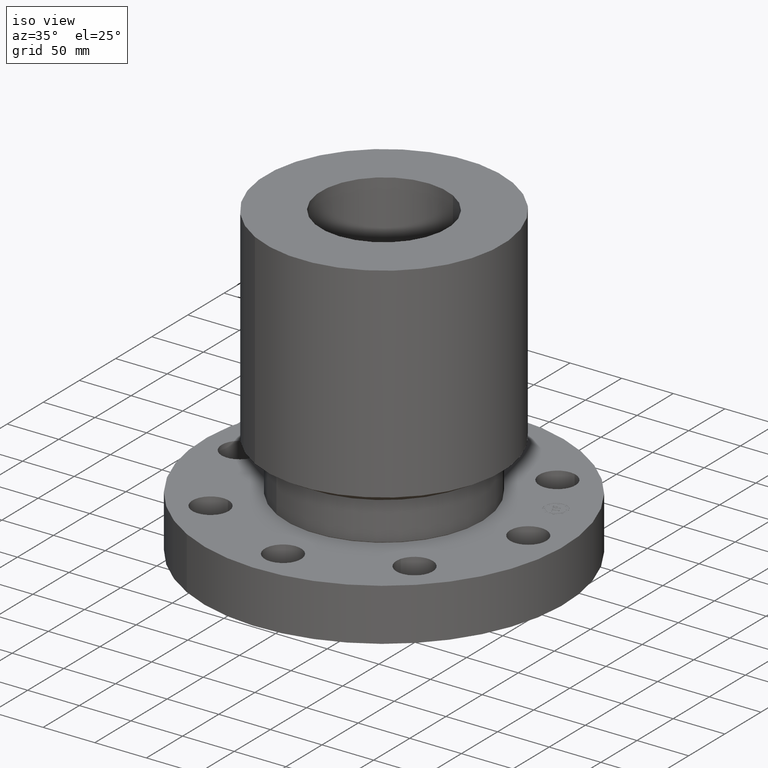
[diagram: clean part render]
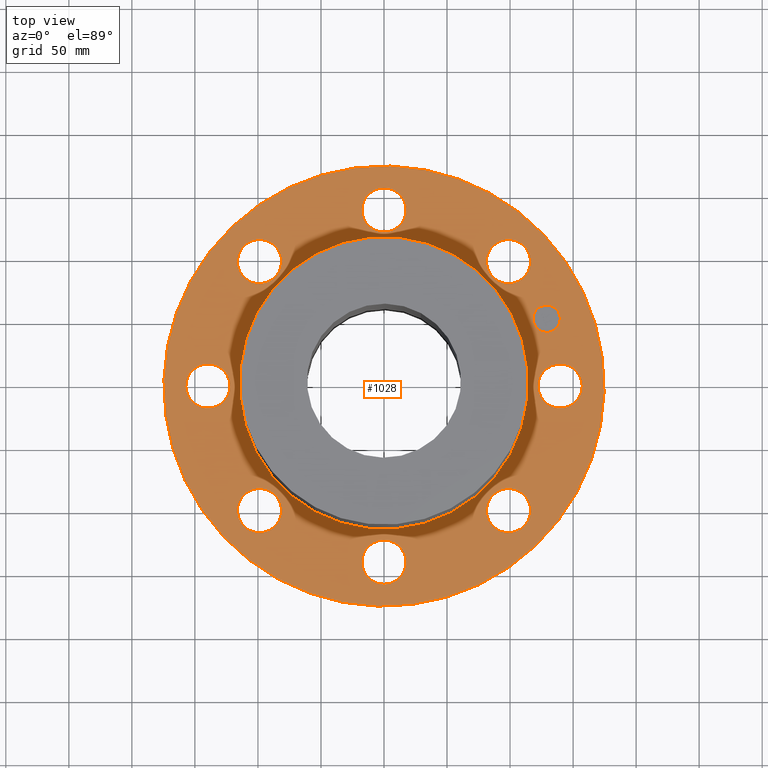
[diagram: tour spotlight — one face highlighted and labeled with its STEP entity id]
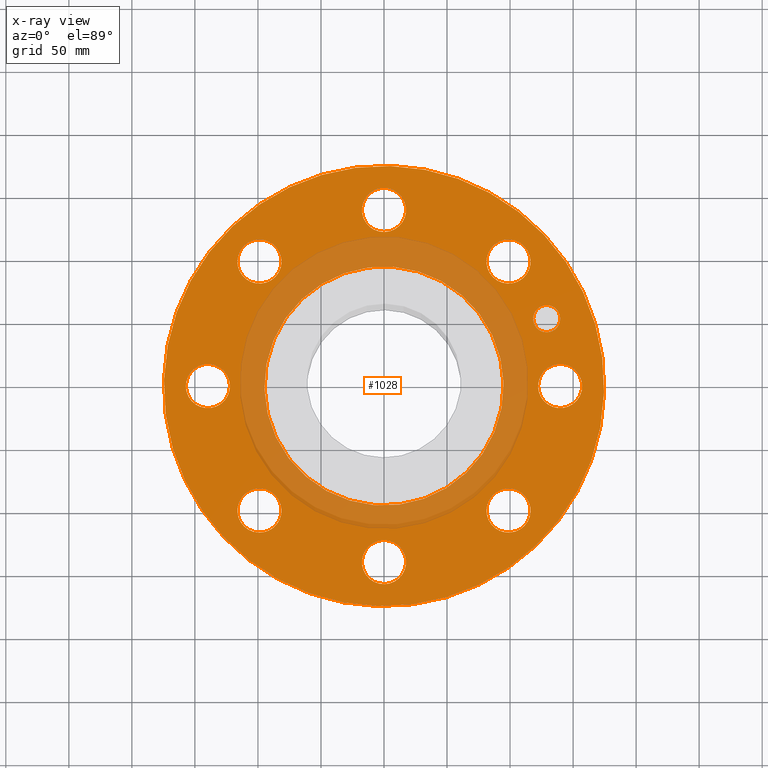
[diagram: x-ray of the same camera — body ghosted, this tour face saturated]
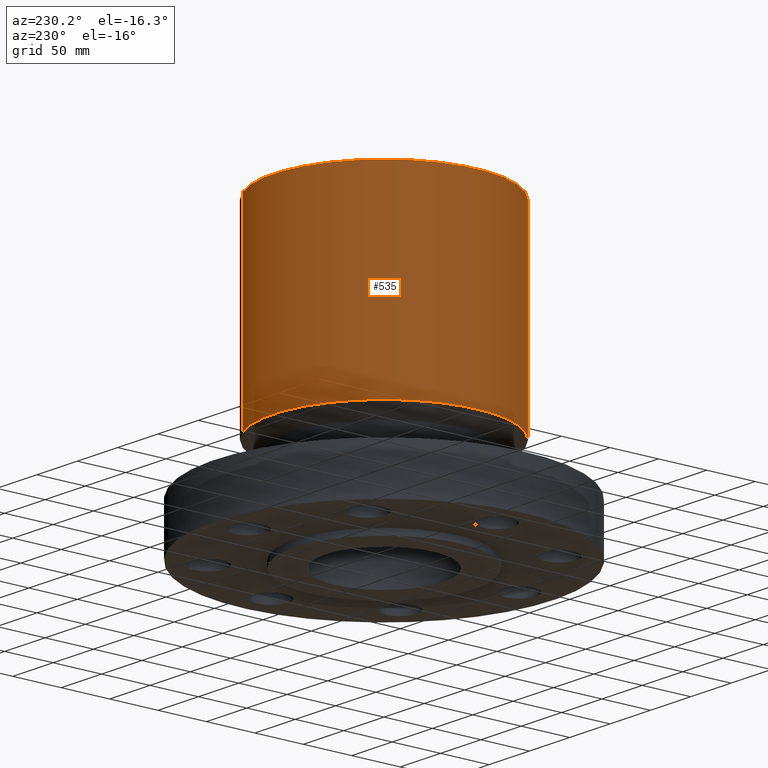
[diagram: tour spotlight — one face highlighted and labeled with its STEP entity id]
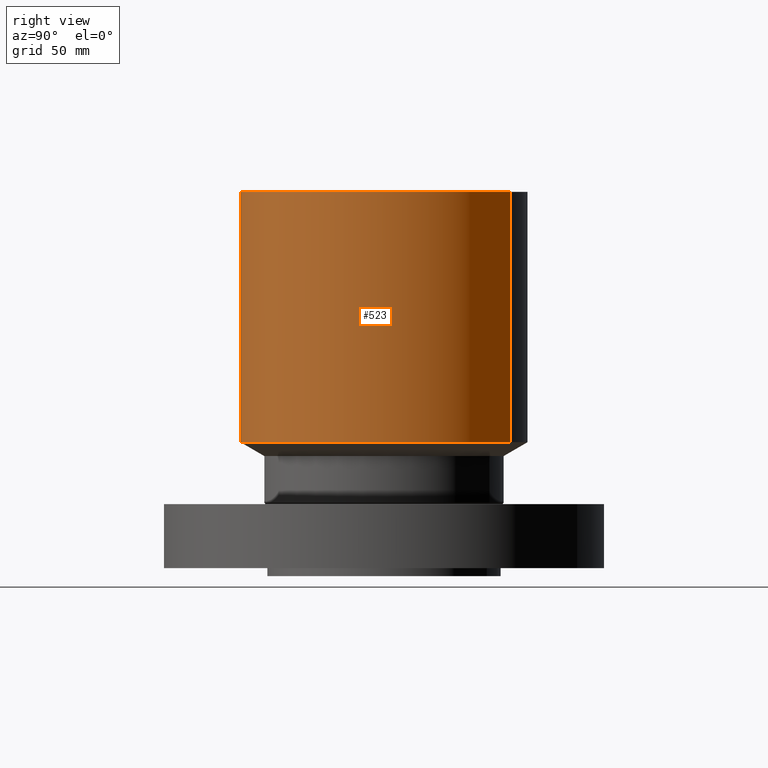
[diagram: tour spotlight — one face highlighted and labeled with its STEP entity id]
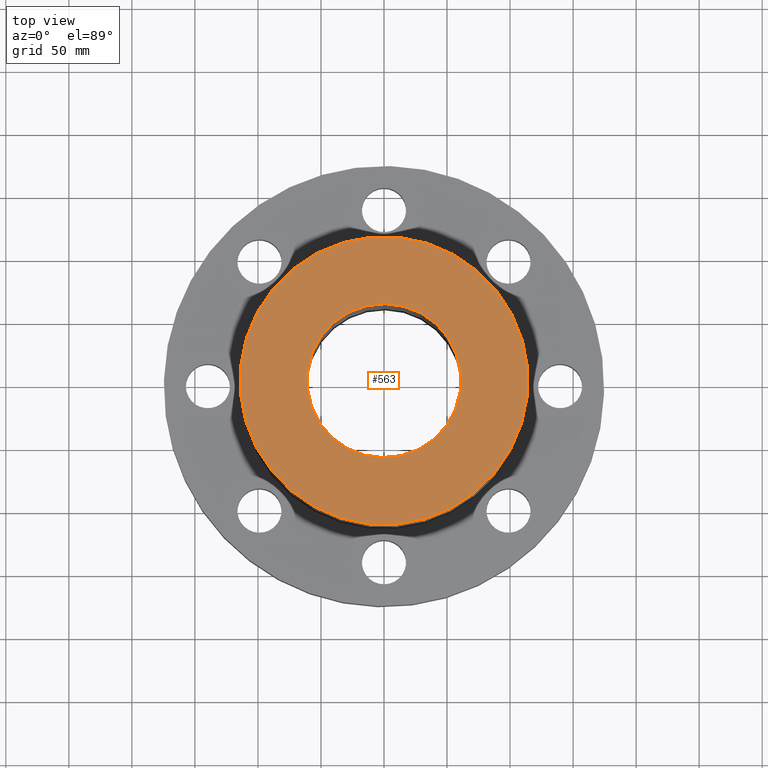
[diagram: tour spotlight — one face highlighted and labeled with its STEP entity id]
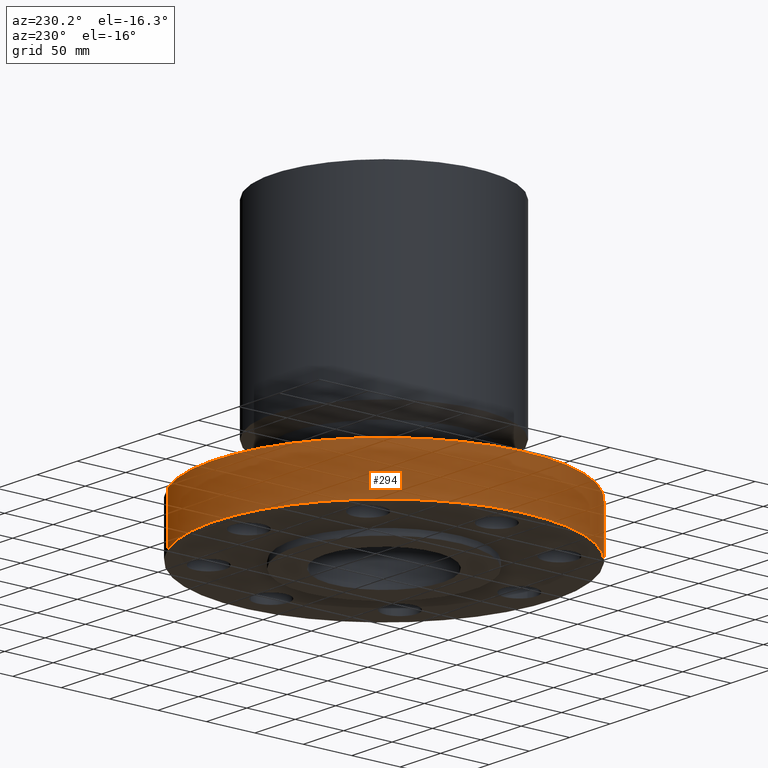
[diagram: tour spotlight — one face highlighted and labeled with its STEP entity id]
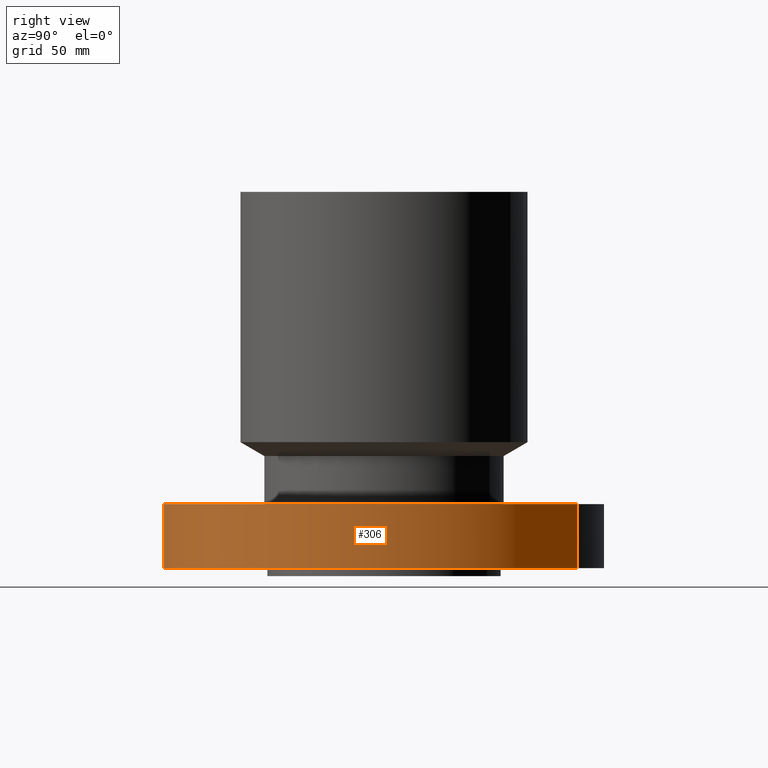
[diagram: tour spotlight — one face highlighted and labeled with its STEP entity id]
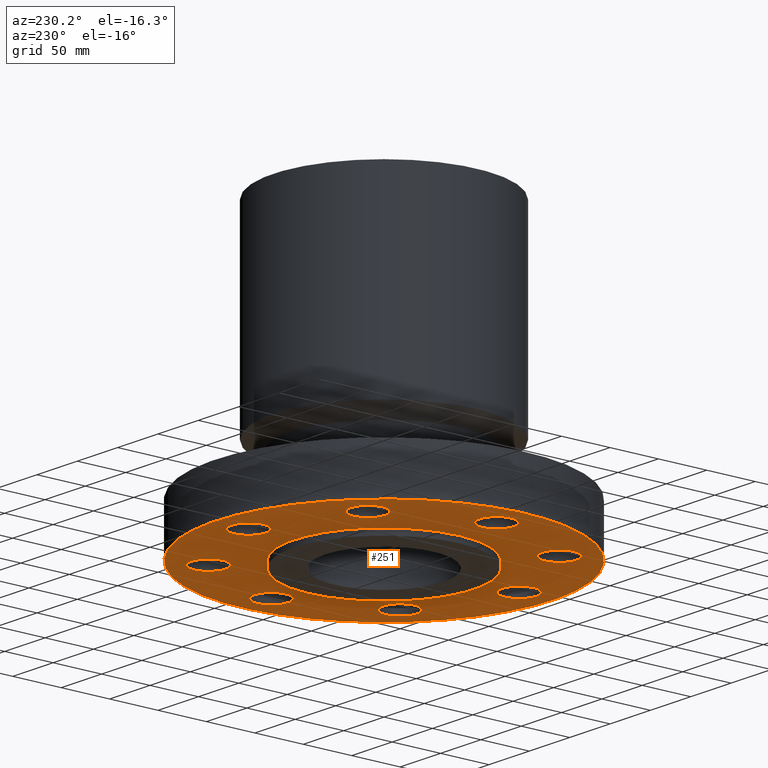
[diagram: tour spotlight — one face highlighted and labeled with its STEP entity id]
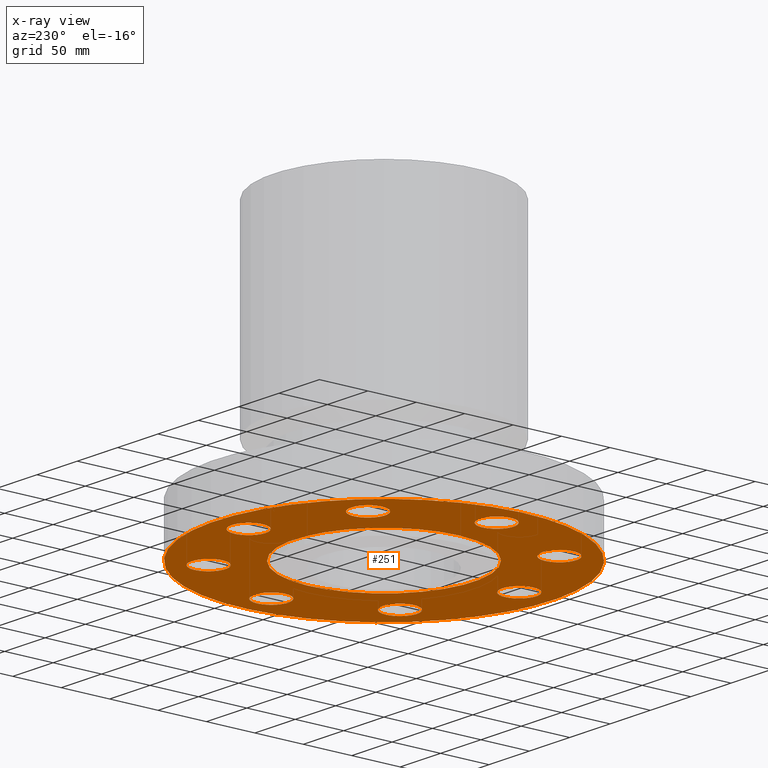
[diagram: x-ray of the same camera — body ghosted, this tour face saturated]
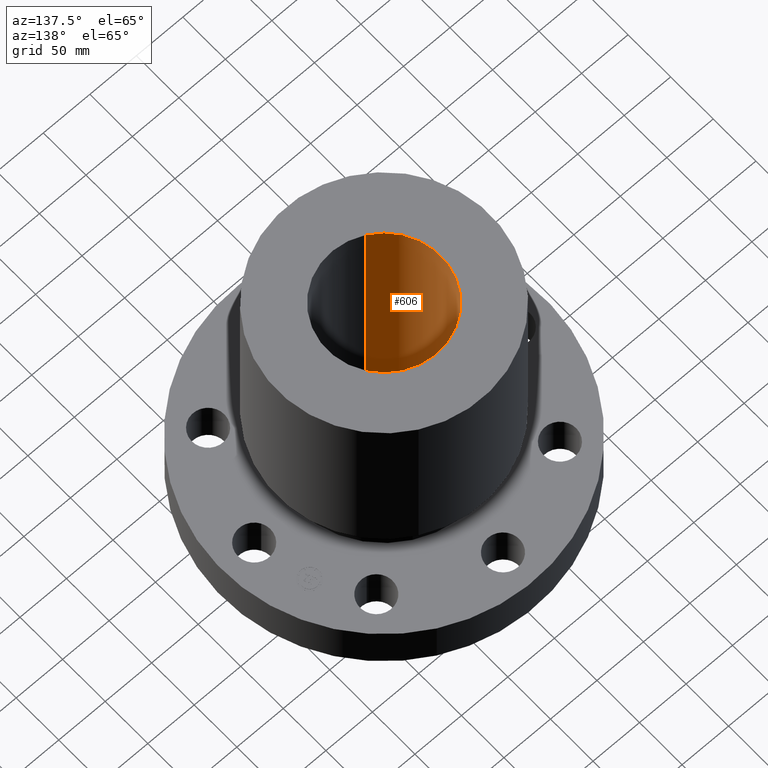
[diagram: tour spotlight — one face highlighted and labeled with its STEP entity id]
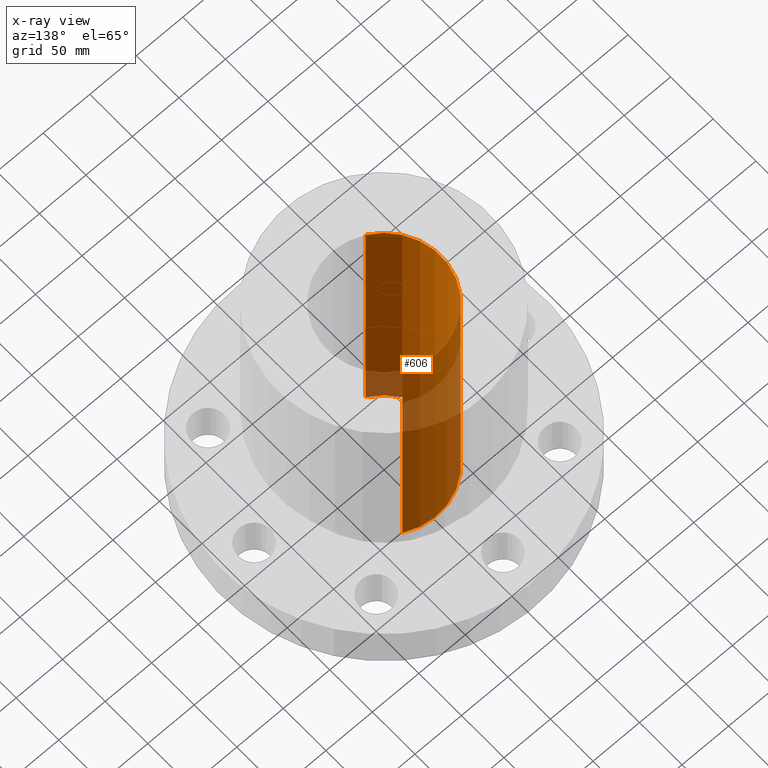
[diagram: x-ray of the same camera — body ghosted, this tour face saturated]
A machine part: a face-by-face anatomy tour. The part has 421 B-rep faces; the first image is the clean iso view, then the 8 largest visible faces are spotlighted one at a time (largest first), each with its STEP entity span.

Face 1 — top view, entity #1028. An x-ray twin of the same camera follows (body ghosted, this face saturated) — the face is partly hidden behind the body. In plain terms, the highlighted planar face has unit normal (0, 0, -1).
Definition (entity closure, byte-faithful):
#51=AXIS2_PLACEMENT_3D('Circle Axis2P3D',#49,#50,$) ;
#254=AXIS2_PLACEMENT_3D('Circle Axis2P3D',#252,#253,$) ;
#278=AXIS2_PLACEMENT_3D('Circle Axis2P3D',#276,#277,$) ;
#297=AXIS2_PLACEMENT_3D('Circle Axis2P3D',#295,#296,$) ;
#314=AXIS2_PLACEMENT_3D('Circle Axis2P3D',#312,#313,$) ;
#349=AXIS2_PLACEMENT_3D('Circle Axis2P3D',#347,#348,$) ;
#678=AXIS2_PLACEMENT_3D('Circle Axis2P3D',#676,#677,$) ;
#697=AXIS2_PLACEMENT_3D('Circle Axis2P3D',#695,#696,$) ;
#721=AXIS2_PLACEMENT_3D('Circle Axis2P3D',#719,#720,$) ;
#740=AXIS2_PLACEMENT_3D('Circle Axis2P3D',#738,#739,$) ;
#764=AXIS2_PLACEMENT_3D('Circle Axis2P3D',#762,#763,$) ;
#783=AXIS2_PLACEMENT_3D('Circle Axis2P3D',#781,#782,$) ;
#807=AXIS2_PLACEMENT_3D('Circle Axis2P3D',#805,#806,$) ;
#826=AXIS2_PLACEMENT_3D('Circle Axis2P3D',#824,#825,$) ;
#850=AXIS2_PLACEMENT_3D('Circle Axis2P3D',#848,#849,$) ;
#869=AXIS2_PLACEMENT_3D('Circle Axis2P3D',#867,#868,$) ;
#893=AXIS2_PLACEMENT_3D('Circle Axis2P3D',#891,#892,$) ;
#912=AXIS2_PLACEMENT_3D('Circle Axis2P3D',#910,#911,$) ;
#936=AXIS2_PLACEMENT_3D('Circle Axis2P3D',#934,#935,$) ;
#955=AXIS2_PLACEMENT_3D('Circle Axis2P3D',#953,#954,$) ;
#968=AXIS2_PLACEMENT_3D('Plane Axis2P3D',#965,#966,#967) ;
#1012=AXIS2_PLACEMENT_3D('Circle Axis2P3D',#1010,#1011,$) ;
#1021=AXIS2_PLACEMENT_3D('Circle Axis2P3D',#1019,#1020,$) ;
#44=CARTESIAN_POINT('Vertex',(4.89446803232,-0.330803621638,2.00000000001)) ;
#49=CARTESIAN_POINT('Axis2P3D Location',(5.50000000002,0.,2.00000000001)) ;
#53=CARTESIAN_POINT('Vertex',(6.10553196773,0.330803621638,2.00000000001)) ;
#252=CARTESIAN_POINT('Axis2P3D Location',(5.50000000002,0.,2.00000000001)) ;
#273=CARTESIAN_POINT('Vertex',(-3.29605057792,-6.03338011302,2.00000000001)) ;
#276=CARTESIAN_POINT('Axis2P3D Location',(0.,0.,2.00000000001)) ;
#280=CARTESIAN_POINT('Vertex',(3.29605057792,6.03338011302,2.00000000001)) ;
#295=CARTESIAN_POINT('Axis2P3D Location',(0.,0.,2.00000000001)) ;
#312=CARTESIAN_POINT('Axis2P3D Location',(0.,0.,2.00000000001)) ;
#316=CARTESIAN_POINT('Vertex',(1.79065438669,3.27777086867,2.00000000001)) ;
#318=CARTESIAN_POINT('Vertex',(-1.79065438669,-3.27777086867,2.00000000001)) ;
#347=CARTESIAN_POINT('Axis2P3D Location',(0.,0.,2.00000000001)) ;
#673=CARTESIAN_POINT('Vertex',(3.22699805185,-3.69482502005,2.00000000001)) ;
#676=CARTESIAN_POINT('Axis2P3D Location',(3.88908729654,-3.88908729654,2.00000000001)) ;
#680=CARTESIAN_POINT('Vertex',(4.55117654123,-4.08334957303,2.00000000001)) ;
#695=CARTESIAN_POINT('Axis2P3D Location',(3.88908729654,-3.88908729654,2.00000000001)) ;
#716=CARTESIAN_POINT('Vertex',(-0.330803621638,-4.89446803232,2.00000000001)) ;
#719=CARTESIAN_POINT('Axis2P3D Location',(-7.82187068438E-016,-5.50000000002,2.00000000001)) ;
#723=CARTESIAN_POINT('Vertex',(0.330803621638,-6.10553196773,2.00000000001)) ;
#738=CARTESIAN_POINT('Axis2P3D Location',(-7.82187068438E-016,-5.50000000002,2.00000000001)) ;
#759=CARTESIAN_POINT('Vertex',(-3.69482502005,-3.22699805185,2.00000000001)) ;
#762=CARTESIAN_POINT('Axis2P3D Location',(-3.88908729654,-3.88908729654,2.00000000001)) ;
#766=CARTESIAN_POINT('Vertex',(-4.08334957303,-4.55117654123,2.00000000001)) ;
#781=CARTESIAN_POINT('Axis2P3D Location',(-3.88908729654,-3.88908729654,2.00000000001)) ;
#802=CARTESIAN_POINT('Vertex',(-4.89446803232,0.330803621638,2.00000000001)) ;
#805=CARTESIAN_POINT('Axis2P3D Location',(-5.50000000002,-6.73555739534E-016,2.00000000001)) ;
#809=CARTESIAN_POINT('Vertex',(-6.10553196773,-0.330803621638,2.00000000001)) ;
#824=CARTESIAN_POINT('Axis2P3D Location',(-5.50000000002,-6.73555739534E-016,2.00000000001)) ;
#845=CARTESIAN_POINT('Vertex',(-3.22699805185,3.69482502005,2.00000000001)) ;
#848=CARTESIAN_POINT('Axis2P3D Location',(-3.88908729654,3.88908729654,2.00000000001)) ;
#852=CARTESIAN_POINT('Vertex',(-4.55117654123,4.08334957303,2.00000000001)) ;
#867=CARTESIAN_POINT('Axis2P3D Location',(-3.88908729654,3.88908729654,2.00000000001)) ;
#888=CARTESIAN_POINT('Vertex',(0.330803621638,4.89446803232,2.00000000001)) ;
#891=CARTESIAN_POINT('Axis2P3D Location',(-1.0103336093E-015,5.50000000002,2.00000000001)) ;
#895=CARTESIAN_POINT('Vertex',(-0.330803621638,6.10553196773,2.00000000001)) ;
#910=CARTESIAN_POINT('Axis2P3D Location',(-1.0103336093E-015,5.50000000002,2.00000000001)) ;
#931=CARTESIAN_POINT('Vertex',(3.69482502005,3.22699805185,2.00000000001)) ;
#934=CARTESIAN_POINT('Axis2P3D Location',(3.88908729654,3.88908729654,2.00000000001)) ;
#938=CARTESIAN_POINT('Vertex',(4.08334957303,4.55117654123,2.00000000001)) ;
#953=CARTESIAN_POINT('Axis2P3D Location',(3.88908729654,3.88908729654,2.00000000001)) ;
#965=CARTESIAN_POINT('Axis2P3D Location',(0.,6.87500000003,2.00000000001)) ;
#1010=CARTESIAN_POINT('Axis2P3D Location',(5.08133742883,2.10475887802,2.00000000001)) ;
#1014=CARTESIAN_POINT('Vertex',(5.24397788596,1.71211008062,2.00000000001)) ;
#1016=CARTESIAN_POINT('Vertex',(4.9186969717,2.49740767541,2.00000000001)) ;
#1019=CARTESIAN_POINT('Axis2P3D Location',(5.08133742883,2.10475887802,2.00000000001)) ;
#50=DIRECTION('Axis2P3D Direction',(0.,-0.,0.0393700787402)) ;
#253=DIRECTION('Axis2P3D Direction',(0.,-0.,0.0393700787402)) ;
#277=DIRECTION('Axis2P3D Direction',(0.,0.,-0.0393700787402)) ;
#296=DIRECTION('Axis2P3D Direction',(0.,0.,-0.0393700787402)) ;
#313=DIRECTION('Axis2P3D Direction',(0.,0.,-0.0393700787402)) ;
#348=DIRECTION('Axis2P3D Direction',(0.,0.,-0.0393700787402)) ;
#677=DIRECTION('Axis2P3D Direction',(-0.,0.,0.0393700787402)) ;
#696=DIRECTION('Axis2P3D Direction',(-0.,0.,0.0393700787402)) ;
#720=DIRECTION('Axis2P3D Direction',(-0.,0.,0.0393700787402)) ;
#739=DIRECTION('Axis2P3D Direction',(-0.,0.,0.0393700787402)) ;
#763=DIRECTION('Axis2P3D Direction',(0.,0.,0.0393700787402)) ;
#782=DIRECTION('Axis2P3D Direction',(0.,0.,0.0393700787402)) ;
#806=DIRECTION('Axis2P3D Direction',(0.,0.,0.0393700787402)) ;
#825=DIRECTION('Axis2P3D Direction',(0.,0.,0.0393700787402)) ;
#849=DIRECTION('Axis2P3D Direction',(0.,0.,0.0393700787402)) ;
#868=DIRECTION('Axis2P3D Direction',(0.,0.,0.0393700787402)) ;
#892=DIRECTION('Axis2P3D Direction',(0.,0.,0.0393700787402)) ;
#911=DIRECTION('Axis2P3D Direction',(0.,0.,0.0393700787402)) ;
#935=DIRECTION('Axis2P3D Direction',(0.,-0.,0.0393700787402)) ;
#954=DIRECTION('Axis2P3D Direction',(0.,-0.,0.0393700787402)) ;
#966=DIRECTION('Axis2P3D Direction',(0.,0.,-0.0393700787402)) ;
#967=DIRECTION('Axis2P3D XDirection',(0.0393700787402,0.,0.)) ;
#1011=DIRECTION('Axis2P3D Direction',(0.,0.,-0.0393700787402)) ;
#1020=DIRECTION('Axis2P3D Direction',(0.,0.,-0.0393700787402)) ;
#971=ORIENTED_EDGE('',*,*,#299,.F.) ;
#972=ORIENTED_EDGE('',*,*,#282,.F.) ;
#975=ORIENTED_EDGE('',*,*,#55,.T.) ;
#976=ORIENTED_EDGE('',*,*,#256,.T.) ;
#979=ORIENTED_EDGE('',*,*,#351,.T.) ;
#980=ORIENTED_EDGE('',*,*,#320,.T.) ;
#983=ORIENTED_EDGE('',*,*,#699,.T.) ;
#984=ORIENTED_EDGE('',*,*,#682,.T.) ;
#987=ORIENTED_EDGE('',*,*,#742,.T.) ;
#988=ORIENTED_EDGE('',*,*,#725,.T.) ;
#991=ORIENTED_EDGE('',*,*,#785,.T.) ;
#992=ORIENTED_EDGE('',*,*,#768,.T.) ;
#995=ORIENTED_EDGE('',*,*,#828,.T.) ;
#996=ORIENTED_EDGE('',*,*,#811,.T.) ;
#999=ORIENTED_EDGE('',*,*,#871,.T.) ;
#1000=ORIENTED_EDGE('',*,*,#854,.T.) ;
#1003=ORIENTED_EDGE('',*,*,#914,.T.) ;
#1004=ORIENTED_EDGE('',*,*,#897,.T.) ;
#1007=ORIENTED_EDGE('',*,*,#957,.T.) ;
#1008=ORIENTED_EDGE('',*,*,#940,.T.) ;
#1025=ORIENTED_EDGE('',*,*,#1018,.F.) ;
#1026=ORIENTED_EDGE('',*,*,#1023,.F.) ;
#977=FACE_BOUND('',#974,.T.) ;
#981=FACE_BOUND('',#978,.T.) ;
#985=FACE_BOUND('',#982,.T.) ;
#989=FACE_BOUND('',#986,.T.) ;
#993=FACE_BOUND('',#990,.T.) ;
#997=FACE_BOUND('',#994,.T.) ;
#1001=FACE_BOUND('',#998,.T.) ;
#1005=FACE_BOUND('',#1002,.T.) ;
#1009=FACE_BOUND('',#1006,.T.) ;
#1027=FACE_BOUND('',#1024,.T.) ;
#1028=ADVANCED_FACE('PartBody',(#973,#977,#981,#985,#989,#993,#997,#1001,#1005,#1009,#1027),#969,.F.) ;
#52=CIRCLE('generated circle',#51,0.690000000003) ;
#255=CIRCLE('generated circle',#254,0.690000000003) ;
#279=CIRCLE('generated circle',#278,6.87500000003) ;
#298=CIRCLE('generated circle',#297,6.87500000003) ;
#315=CIRCLE('generated circle',#314,3.73500000001) ;
#350=CIRCLE('generated circle',#349,3.73500000001) ;
#679=CIRCLE('generated circle',#678,0.690000000003) ;
#698=CIRCLE('generated circle',#697,0.690000000003) ;
#722=CIRCLE('generated circle',#721,0.690000000003) ;
#741=CIRCLE('generated circle',#740,0.690000000003) ;
#765=CIRCLE('generated circle',#764,0.690000000003) ;
#784=CIRCLE('generated circle',#783,0.690000000003) ;
#808=CIRCLE('generated circle',#807,0.690000000003) ;
#827=CIRCLE('generated circle',#826,0.690000000003) ;
#851=CIRCLE('generated circle',#850,0.690000000003) ;
#870=CIRCLE('generated circle',#869,0.690000000003) ;
#894=CIRCLE('generated circle',#893,0.690000000003) ;
#913=CIRCLE('generated circle',#912,0.690000000003) ;
#937=CIRCLE('generated circle',#936,0.690000000003) ;
#956=CIRCLE('generated circle',#955,0.690000000003) ;
#1013=CIRCLE('generated circle',#1012,0.424999995752) ;
#1022=CIRCLE('generated circle',#1021,0.424999995752) ;
#55=EDGE_CURVE('',#54,#45,#52,.F.) ;
#256=EDGE_CURVE('',#45,#54,#255,.F.) ;
#282=EDGE_CURVE('',#274,#281,#279,.T.) ;
#299=EDGE_CURVE('',#281,#274,#298,.T.) ;
#320=EDGE_CURVE('',#317,#319,#315,.T.) ;
#351=EDGE_CURVE('',#319,#317,#350,.T.) ;
#682=EDGE_CURVE('',#681,#674,#679,.F.) ;
#699=EDGE_CURVE('',#674,#681,#698,.F.) ;
#725=EDGE_CURVE('',#724,#717,#722,.F.) ;
#742=EDGE_CURVE('',#717,#724,#741,.F.) ;
#768=EDGE_CURVE('',#767,#760,#765,.F.) ;
#785=EDGE_CURVE('',#760,#767,#784,.F.) ;
#811=EDGE_CURVE('',#810,#803,#808,.F.) ;
#828=EDGE_CURVE('',#803,#810,#827,.F.) ;
#854=EDGE_CURVE('',#853,#846,#851,.F.) ;
#871=EDGE_CURVE('',#846,#853,#870,.F.) ;
#897=EDGE_CURVE('',#896,#889,#894,.F.) ;
#914=EDGE_CURVE('',#889,#896,#913,.F.) ;
#940=EDGE_CURVE('',#939,#932,#937,.F.) ;
#957=EDGE_CURVE('',#932,#939,#956,.F.) ;
#1018=EDGE_CURVE('',#1015,#1017,#1013,.F.) ;
#1023=EDGE_CURVE('',#1017,#1015,#1022,.F.) ;
#970=EDGE_LOOP('',(#971,#972)) ;
#974=EDGE_LOOP('',(#975,#976)) ;
#978=EDGE_LOOP('',(#979,#980)) ;
#982=EDGE_LOOP('',(#983,#984)) ;
#986=EDGE_LOOP('',(#987,#988)) ;
#990=EDGE_LOOP('',(#991,#992)) ;
#994=EDGE_LOOP('',(#995,#996)) ;
#998=EDGE_LOOP('',(#999,#1000)) ;
#1002=EDGE_LOOP('',(#1003,#1004)) ;
#1006=EDGE_LOOP('',(#1007,#1008)) ;
#1024=EDGE_LOOP('',(#1025,#1026)) ;
#973=FACE_OUTER_BOUND('',#970,.T.) ;
#969=PLANE('',#968) ;
#45=VERTEX_POINT('',#44) ;
#54=VERTEX_POINT('',#53) ;
#274=VERTEX_POINT('',#273) ;
#281=VERTEX_POINT('',#280) ;
#317=VERTEX_POINT('',#316) ;
#319=VERTEX_POINT('',#318) ;
#674=VERTEX_POINT('',#673) ;
#681=VERTEX_POINT('',#680) ;
#717=VERTEX_POINT('',#716) ;
#724=VERTEX_POINT('',#723) ;
#760=VERTEX_POINT('',#759) ;
#767=VERTEX_POINT('',#766) ;
#803=VERTEX_POINT('',#802) ;
#810=VERTEX_POINT('',#809) ;
#846=VERTEX_POINT('',#845) ;
#853=VERTEX_POINT('',#852) ;
#889=VERTEX_POINT('',#888) ;
#896=VERTEX_POINT('',#895) ;
#932=VERTEX_POINT('',#931) ;
#939=VERTEX_POINT('',#938) ;
#1015=VERTEX_POINT('',#1014) ;
#1017=VERTEX_POINT('',#1016) ;

Face 2 — auxiliary view, entity #535. In plain terms, the highlighted cylindrical surface (partial cylindrical patch) has radius 114.3 mm, axis along (0, 0, -1).
Definition (entity closure, byte-faithful):
#483=AXIS2_PLACEMENT_3D('Circle Axis2P3D',#481,#482,$) ;
#496=AXIS2_PLACEMENT_3D('Cylinder Axis2P3D',#493,#494,#495) ;
#526=AXIS2_PLACEMENT_3D('Circle Axis2P3D',#524,#525,$) ;
#459=CARTESIAN_POINT('Vertex',(2.15741492373,3.94912152852,3.93301270191)) ;
#466=CARTESIAN_POINT('Vertex',(-2.15741492373,-3.94912152852,3.93301270191)) ;
#481=CARTESIAN_POINT('Axis2P3D Location',(0.,0.,3.93301270191)) ;
#493=CARTESIAN_POINT('Axis2P3D Location',(0.,0.,5.75000000002)) ;
#498=CARTESIAN_POINT('Line Origine',(2.15741492373,3.94912152852,7.84150635098)) ;
#502=CARTESIAN_POINT('Vertex',(2.15741492373,3.94912152852,11.75)) ;
#509=CARTESIAN_POINT('Vertex',(-2.15741492373,-3.94912152852,11.75)) ;
#512=CARTESIAN_POINT('Line Origine',(-2.15741492373,-3.94912152852,7.84150635098)) ;
#524=CARTESIAN_POINT('Axis2P3D Location',(0.,0.,11.75)) ;
#482=DIRECTION('Axis2P3D Direction',(-0.,0.,0.0393700787402)) ;
#494=DIRECTION('Axis2P3D Direction',(0.,0.,-0.0393700787402)) ;
#495=DIRECTION('Axis2P3D XDirection',(-0.0188750212049,-0.0345504945626,0.)) ;
#499=DIRECTION('Vector Direction',(0.,0.,-0.0393700787402)) ;
#513=DIRECTION('Vector Direction',(0.,0.,-0.0393700787402)) ;
#525=DIRECTION('Axis2P3D Direction',(0.,0.,-0.0393700787402)) ;
#500=VECTOR('Line Direction',#499,0.0393700787402) ;
#514=VECTOR('Line Direction',#513,0.0393700787402) ;
#530=ORIENTED_EDGE('',*,*,#485,.F.) ;
#531=ORIENTED_EDGE('',*,*,#516,.T.) ;
#532=ORIENTED_EDGE('',*,*,#528,.T.) ;
#533=ORIENTED_EDGE('',*,*,#504,.F.) ;
#535=ADVANCED_FACE('PartBody',(#534),#497,.T.) ;
#484=CIRCLE('generated circle',#483,4.50000000002) ;
#527=CIRCLE('generated circle',#526,4.50000000002) ;
#497=CYLINDRICAL_SURFACE('generated cylinder',#496,4.50000000002) ;
#485=EDGE_CURVE('',#467,#460,#484,.F.) ;
#504=EDGE_CURVE('',#460,#503,#501,.F.) ;
#516=EDGE_CURVE('',#467,#510,#515,.F.) ;
#528=EDGE_CURVE('',#510,#503,#527,.T.) ;
#529=EDGE_LOOP('',(#530,#531,#532,#533)) ;
#534=FACE_OUTER_BOUND('',#529,.T.) ;
#501=LINE('Line',#498,#500) ;
#515=LINE('Line',#512,#514) ;
#460=VERTEX_POINT('',#459) ;
#467=VERTEX_POINT('',#466) ;
#503=VERTEX_POINT('',#502) ;
#510=VERTEX_POINT('',#509) ;

Face 3 — right view, entity #523. In plain terms, the highlighted cylindrical surface (partial cylindrical patch) has radius 114.3 mm, axis along (0, 0, -1).
Definition (entity closure, byte-faithful):
#464=AXIS2_PLACEMENT_3D('Circle Axis2P3D',#462,#463,$) ;
#496=AXIS2_PLACEMENT_3D('Cylinder Axis2P3D',#493,#494,#495) ;
#507=AXIS2_PLACEMENT_3D('Circle Axis2P3D',#505,#506,$) ;
#459=CARTESIAN_POINT('Vertex',(2.15741492373,3.94912152852,3.93301270191)) ;
#462=CARTESIAN_POINT('Axis2P3D Location',(0.,0.,3.93301270191)) ;
#466=CARTESIAN_POINT('Vertex',(-2.15741492373,-3.94912152852,3.93301270191)) ;
#493=CARTESIAN_POINT('Axis2P3D Location',(0.,0.,5.75000000002)) ;
#498=CARTESIAN_POINT('Line Origine',(2.15741492373,3.94912152852,7.84150635098)) ;
#502=CARTESIAN_POINT('Vertex',(2.15741492373,3.94912152852,11.75)) ;
#505=CARTESIAN_POINT('Axis2P3D Location',(0.,0.,11.75)) ;
#509=CARTESIAN_POINT('Vertex',(-2.15741492373,-3.94912152852,11.75)) ;
#512=CARTESIAN_POINT('Line Origine',(-2.15741492373,-3.94912152852,7.84150635098)) ;
#463=DIRECTION('Axis2P3D Direction',(-0.,0.,0.0393700787402)) ;
#494=DIRECTION('Axis2P3D Direction',(0.,0.,-0.0393700787402)) ;
#495=DIRECTION('Axis2P3D XDirection',(-0.0188750212049,-0.0345504945626,0.)) ;
#499=DIRECTION('Vector Direction',(0.,0.,-0.0393700787402)) ;
#506=DIRECTION('Axis2P3D Direction',(0.,0.,-0.0393700787402)) ;
#513=DIRECTION('Vector Direction',(0.,0.,-0.0393700787402)) ;
#500=VECTOR('Line Direction',#499,0.0393700787402) ;
#514=VECTOR('Line Direction',#513,0.0393700787402) ;
#518=ORIENTED_EDGE('',*,*,#468,.F.) ;
#519=ORIENTED_EDGE('',*,*,#504,.T.) ;
#520=ORIENTED_EDGE('',*,*,#511,.T.) ;
#521=ORIENTED_EDGE('',*,*,#516,.F.) ;
#523=ADVANCED_FACE('PartBody',(#522),#497,.T.) ;
#465=CIRCLE('generated circle',#464,4.50000000002) ;
#508=CIRCLE('generated circle',#507,4.50000000002) ;
#497=CYLINDRICAL_SURFACE('generated cylinder',#496,4.50000000002) ;
#468=EDGE_CURVE('',#460,#467,#465,.F.) ;
#504=EDGE_CURVE('',#460,#503,#501,.F.) ;
#511=EDGE_CURVE('',#503,#510,#508,.T.) ;
#516=EDGE_CURVE('',#467,#510,#515,.F.) ;
#517=EDGE_LOOP('',(#518,#519,#520,#521)) ;
#522=FACE_OUTER_BOUND('',#517,.T.) ;
#501=LINE('Line',#498,#500) ;
#515=LINE('Line',#512,#514) ;
#460=VERTEX_POINT('',#459) ;
#467=VERTEX_POINT('',#466) ;
#503=VERTEX_POINT('',#502) ;
#510=VERTEX_POINT('',#509) ;

Face 4 — top view, entity #563. In plain terms, the highlighted planar face has unit normal (0, 0, -1).
Definition (entity closure, byte-faithful):
#507=AXIS2_PLACEMENT_3D('Circle Axis2P3D',#505,#506,$) ;
#526=AXIS2_PLACEMENT_3D('Circle Axis2P3D',#524,#525,$) ;
#539=AXIS2_PLACEMENT_3D('Plane Axis2P3D',#536,#537,#538) ;
#547=AXIS2_PLACEMENT_3D('Circle Axis2P3D',#545,#546,$) ;
#556=AXIS2_PLACEMENT_3D('Circle Axis2P3D',#554,#555,$) ;
#502=CARTESIAN_POINT('Vertex',(2.15741492373,3.94912152852,11.75)) ;
#505=CARTESIAN_POINT('Axis2P3D Location',(0.,0.,11.75)) ;
#509=CARTESIAN_POINT('Vertex',(-2.15741492373,-3.94912152852,11.75)) ;
#524=CARTESIAN_POINT('Axis2P3D Location',(0.,0.,11.75)) ;
#536=CARTESIAN_POINT('Axis2P3D Location',(0.,4.50000000002,11.75)) ;
#545=CARTESIAN_POINT('Axis2P3D Location',(0.,0.,11.75)) ;
#549=CARTESIAN_POINT('Vertex',(-1.15301842035,-2.11058606135,11.75)) ;
#551=CARTESIAN_POINT('Vertex',(1.15301842035,2.11058606135,11.75)) ;
#554=CARTESIAN_POINT('Axis2P3D Location',(0.,0.,11.75)) ;
#506=DIRECTION('Axis2P3D Direction',(0.,0.,-0.0393700787402)) ;
#525=DIRECTION('Axis2P3D Direction',(0.,0.,-0.0393700787402)) ;
#537=DIRECTION('Axis2P3D Direction',(0.,0.,-0.0393700787402)) ;
#538=DIRECTION('Axis2P3D XDirection',(0.0393700787402,0.,0.)) ;
#546=DIRECTION('Axis2P3D Direction',(0.,0.,-0.0393700787402)) ;
#555=DIRECTION('Axis2P3D Direction',(0.,0.,-0.0393700787402)) ;
#542=ORIENTED_EDGE('',*,*,#511,.F.) ;
#543=ORIENTED_EDGE('',*,*,#528,.F.) ;
#560=ORIENTED_EDGE('',*,*,#553,.T.) ;
#561=ORIENTED_EDGE('',*,*,#558,.T.) ;
#562=FACE_BOUND('',#559,.T.) ;
#563=ADVANCED_FACE('PartBody',(#544,#562),#540,.F.) ;
#508=CIRCLE('generated circle',#507,4.50000000002) ;
#527=CIRCLE('generated circle',#526,4.50000000002) ;
#548=CIRCLE('generated circle',#547,2.40500000001) ;
#557=CIRCLE('generated circle',#556,2.40500000001) ;
#511=EDGE_CURVE('',#503,#510,#508,.T.) ;
#528=EDGE_CURVE('',#510,#503,#527,.T.) ;
#553=EDGE_CURVE('',#550,#552,#548,.T.) ;
#558=EDGE_CURVE('',#552,#550,#557,.T.) ;
#541=EDGE_LOOP('',(#542,#543)) ;
#559=EDGE_LOOP('',(#560,#561)) ;
#544=FACE_OUTER_BOUND('',#541,.T.) ;
#540=PLANE('',#539) ;
#503=VERTEX_POINT('',#502) ;
#510=VERTEX_POINT('',#509) ;
#550=VERTEX_POINT('',#549) ;
#552=VERTEX_POINT('',#551) ;

Face 5 — auxiliary view, entity #294. In plain terms, the highlighted cylindrical surface (partial cylindrical patch) has radius 174.625 mm, axis along (0, 0, -1).
Definition (entity closure, byte-faithful):
#82=AXIS2_PLACEMENT_3D('Circle Axis2P3D',#80,#81,$) ;
#267=AXIS2_PLACEMENT_3D('Cylinder Axis2P3D',#264,#265,#266) ;
#278=AXIS2_PLACEMENT_3D('Circle Axis2P3D',#276,#277,$) ;
#80=CARTESIAN_POINT('Axis2P3D Location',(0.,0.,0.)) ;
#84=CARTESIAN_POINT('Vertex',(-3.29605057792,-6.03338011302,1.1189649382E-015)) ;
#86=CARTESIAN_POINT('Vertex',(3.29605057792,6.03338011302,1.1189649382E-015)) ;
#264=CARTESIAN_POINT('Axis2P3D Location',(0.,0.,5.75000000002)) ;
#269=CARTESIAN_POINT('Line Origine',(-3.29605057792,-6.03338011302,1.)) ;
#273=CARTESIAN_POINT('Vertex',(-3.29605057792,-6.03338011302,2.00000000001)) ;
#276=CARTESIAN_POINT('Axis2P3D Location',(0.,0.,2.00000000001)) ;
#280=CARTESIAN_POINT('Vertex',(3.29605057792,6.03338011302,2.00000000001)) ;
#283=CARTESIAN_POINT('Line Origine',(3.29605057792,6.03338011302,1.)) ;
#81=DIRECTION('Axis2P3D Direction',(0.,0.,-0.0393700787402)) ;
#265=DIRECTION('Axis2P3D Direction',(0.,0.,-0.0393700787402)) ;
#266=DIRECTION('Axis2P3D XDirection',(0.0188750212049,0.0345504945626,0.)) ;
#270=DIRECTION('Vector Direction',(0.,0.,-0.0393700787402)) ;
#277=DIRECTION('Axis2P3D Direction',(0.,0.,-0.0393700787402)) ;
#284=DIRECTION('Vector Direction',(0.,0.,-0.0393700787402)) ;
#271=VECTOR('Line Direction',#270,0.0393700787402) ;
#285=VECTOR('Line Direction',#284,0.0393700787402) ;
#289=ORIENTED_EDGE('',*,*,#88,.F.) ;
#290=ORIENTED_EDGE('',*,*,#275,.T.) ;
#291=ORIENTED_EDGE('',*,*,#282,.T.) ;
#292=ORIENTED_EDGE('',*,*,#287,.F.) ;
#294=ADVANCED_FACE('PartBody',(#293),#268,.T.) ;
#83=CIRCLE('generated circle',#82,6.87500000003) ;
#279=CIRCLE('generated circle',#278,6.87500000003) ;
#268=CYLINDRICAL_SURFACE('generated cylinder',#267,6.87500000003) ;
#88=EDGE_CURVE('',#85,#87,#83,.T.) ;
#275=EDGE_CURVE('',#85,#274,#272,.F.) ;
#282=EDGE_CURVE('',#274,#281,#279,.T.) ;
#287=EDGE_CURVE('',#87,#281,#286,.F.) ;
#288=EDGE_LOOP('',(#289,#290,#291,#292)) ;
#293=FACE_OUTER_BOUND('',#288,.T.) ;
#272=LINE('Line',#269,#271) ;
#286=LINE('Line',#283,#285) ;
#85=VERTEX_POINT('',#84) ;
#87=VERTEX_POINT('',#86) ;
#274=VERTEX_POINT('',#273) ;
#281=VERTEX_POINT('',#280) ;

Face 6 — right view, entity #306. In plain terms, the highlighted cylindrical surface (partial cylindrical patch) has radius 174.625 mm, axis along (0, 0, -1).
Definition (entity closure, byte-faithful):
#91=AXIS2_PLACEMENT_3D('Circle Axis2P3D',#89,#90,$) ;
#267=AXIS2_PLACEMENT_3D('Cylinder Axis2P3D',#264,#265,#266) ;
#297=AXIS2_PLACEMENT_3D('Circle Axis2P3D',#295,#296,$) ;
#84=CARTESIAN_POINT('Vertex',(-3.29605057792,-6.03338011302,1.1189649382E-015)) ;
#86=CARTESIAN_POINT('Vertex',(3.29605057792,6.03338011302,1.1189649382E-015)) ;
#89=CARTESIAN_POINT('Axis2P3D Location',(0.,0.,0.)) ;
#264=CARTESIAN_POINT('Axis2P3D Location',(0.,0.,5.75000000002)) ;
#269=CARTESIAN_POINT('Line Origine',(-3.29605057792,-6.03338011302,1.)) ;
#273=CARTESIAN_POINT('Vertex',(-3.29605057792,-6.03338011302,2.00000000001)) ;
#280=CARTESIAN_POINT('Vertex',(3.29605057792,6.03338011302,2.00000000001)) ;
#283=CARTESIAN_POINT('Line Origine',(3.29605057792,6.03338011302,1.)) ;
#295=CARTESIAN_POINT('Axis2P3D Location',(0.,0.,2.00000000001)) ;
#90=DIRECTION('Axis2P3D Direction',(0.,0.,-0.0393700787402)) ;
#265=DIRECTION('Axis2P3D Direction',(0.,0.,-0.0393700787402)) ;
#266=DIRECTION('Axis2P3D XDirection',(0.0188750212049,0.0345504945626,0.)) ;
#270=DIRECTION('Vector Direction',(0.,0.,-0.0393700787402)) ;
#284=DIRECTION('Vector Direction',(0.,0.,-0.0393700787402)) ;
#296=DIRECTION('Axis2P3D Direction',(0.,0.,-0.0393700787402)) ;
#271=VECTOR('Line Direction',#270,0.0393700787402) ;
#285=VECTOR('Line Direction',#284,0.0393700787402) ;
#301=ORIENTED_EDGE('',*,*,#93,.F.) ;
#302=ORIENTED_EDGE('',*,*,#287,.T.) ;
#303=ORIENTED_EDGE('',*,*,#299,.T.) ;
#304=ORIENTED_EDGE('',*,*,#275,.F.) ;
#306=ADVANCED_FACE('PartBody',(#305),#268,.T.) ;
#92=CIRCLE('generated circle',#91,6.87500000003) ;
#298=CIRCLE('generated circle',#297,6.87500000003) ;
#268=CYLINDRICAL_SURFACE('generated cylinder',#267,6.87500000003) ;
#93=EDGE_CURVE('',#87,#85,#92,.T.) ;
#275=EDGE_CURVE('',#85,#274,#272,.F.) ;
#287=EDGE_CURVE('',#87,#281,#286,.F.) ;
#299=EDGE_CURVE('',#281,#274,#298,.T.) ;
#300=EDGE_LOOP('',(#301,#302,#303,#304)) ;
#305=FACE_OUTER_BOUND('',#300,.T.) ;
#272=LINE('Line',#269,#271) ;
#286=LINE('Line',#283,#285) ;
#85=VERTEX_POINT('',#84) ;
#87=VERTEX_POINT('',#86) ;
#274=VERTEX_POINT('',#273) ;
#281=VERTEX_POINT('',#280) ;

Face 7 — auxiliary view, entity #251. An x-ray twin of the same camera follows (body ghosted, this face saturated) — the face is partly hidden behind the body. In plain terms, the highlighted planar face has unit normal (0, 0, -1).
Definition (entity closure, byte-faithful):
#65=AXIS2_PLACEMENT_3D('Circle Axis2P3D',#63,#64,$) ;
#78=AXIS2_PLACEMENT_3D('Plane Axis2P3D',#75,#76,#77) ;
#82=AXIS2_PLACEMENT_3D('Circle Axis2P3D',#80,#81,$) ;
#91=AXIS2_PLACEMENT_3D('Circle Axis2P3D',#89,#90,$) ;
#100=AXIS2_PLACEMENT_3D('Circle Axis2P3D',#98,#99,$) ;
#109=AXIS2_PLACEMENT_3D('Circle Axis2P3D',#107,#108,$) ;
#118=AXIS2_PLACEMENT_3D('Circle Axis2P3D',#116,#117,$) ;
#127=AXIS2_PLACEMENT_3D('Circle Axis2P3D',#125,#126,$) ;
#136=AXIS2_PLACEMENT_3D('Circle Axis2P3D',#134,#135,$) ;
#145=AXIS2_PLACEMENT_3D('Circle Axis2P3D',#143,#144,$) ;
#154=AXIS2_PLACEMENT_3D('Circle Axis2P3D',#152,#153,$) ;
#163=AXIS2_PLACEMENT_3D('Circle Axis2P3D',#161,#162,$) ;
#172=AXIS2_PLACEMENT_3D('Circle Axis2P3D',#170,#171,$) ;
#181=AXIS2_PLACEMENT_3D('Circle Axis2P3D',#179,#180,$) ;
#190=AXIS2_PLACEMENT_3D('Circle Axis2P3D',#188,#189,$) ;
#199=AXIS2_PLACEMENT_3D('Circle Axis2P3D',#197,#198,$) ;
#208=AXIS2_PLACEMENT_3D('Circle Axis2P3D',#206,#207,$) ;
#217=AXIS2_PLACEMENT_3D('Circle Axis2P3D',#215,#216,$) ;
#226=AXIS2_PLACEMENT_3D('Circle Axis2P3D',#224,#225,$) ;
#235=AXIS2_PLACEMENT_3D('Circle Axis2P3D',#233,#234,$) ;
#244=AXIS2_PLACEMENT_3D('Circle Axis2P3D',#242,#243,$) ;
#46=CARTESIAN_POINT('Vertex',(4.89446803232,-0.330803621638,2.2401153548E-016)) ;
#60=CARTESIAN_POINT('Vertex',(6.10553196773,0.330803621638,2.2401153548E-016)) ;
#63=CARTESIAN_POINT('Axis2P3D Location',(5.50000000002,0.,0.)) ;
#75=CARTESIAN_POINT('Axis2P3D Location',(0.,3.65500000001,0.)) ;
#80=CARTESIAN_POINT('Axis2P3D Location',(0.,0.,0.)) ;
#84=CARTESIAN_POINT('Vertex',(-3.29605057792,-6.03338011302,1.1189649382E-015)) ;
#86=CARTESIAN_POINT('Vertex',(3.29605057792,6.03338011302,1.1189649382E-015)) ;
#89=CARTESIAN_POINT('Axis2P3D Location',(0.,0.,0.)) ;
#98=CARTESIAN_POINT('Axis2P3D Location',(5.50000000002,0.,0.)) ;
#107=CARTESIAN_POINT('Axis2P3D Location',(0.,0.,0.)) ;
#111=CARTESIAN_POINT('Vertex',(1.75230034361,3.20756426372,0.)) ;
#113=CARTESIAN_POINT('Vertex',(-1.75230034361,-3.20756426372,0.)) ;
#116=CARTESIAN_POINT('Axis2P3D Location',(0.,0.,0.)) ;
#125=CARTESIAN_POINT('Axis2P3D Location',(3.88908729654,-3.88908729654,0.)) ;
#129=CARTESIAN_POINT('Vertex',(4.55117654123,-4.08334957303,0.)) ;
#131=CARTESIAN_POINT('Vertex',(3.22699805185,-3.69482502005,0.)) ;
#134=CARTESIAN_POINT('Axis2P3D Location',(3.88908729654,-3.88908729654,0.)) ;
#143=CARTESIAN_POINT('Axis2P3D Location',(-9.79094320929E-016,-5.50000000002,0.)) ;
#147=CARTESIAN_POINT('Vertex',(0.330803621638,-6.10553196773,0.)) ;
#149=CARTESIAN_POINT('Vertex',(-0.330803621638,-4.89446803232,0.)) ;
#152=CARTESIAN_POINT('Axis2P3D Location',(-4.89547160465E-016,-5.50000000002,0.)) ;
#161=CARTESIAN_POINT('Axis2P3D Location',(-3.88908729654,-3.88908729654,0.)) ;
#165=CARTESIAN_POINT('Vertex',(-4.08334957303,-4.55117654123,0.)) ;
#167=CARTESIAN_POINT('Vertex',(-3.69482502005,-3.22699805185,0.)) ;
#170=CARTESIAN_POINT('Axis2P3D Location',(-3.88908729654,-3.88908729654,0.)) ;
#179=CARTESIAN_POINT('Axis2P3D Location',(-5.50000000002,-5.59482469102E-016,0.)) ;
#183=CARTESIAN_POINT('Vertex',(-6.10553196773,-0.330803621638,0.)) ;
#185=CARTESIAN_POINT('Vertex',(-4.89446803232,0.330803621638,0.)) ;
#188=CARTESIAN_POINT('Axis2P3D Location',(-5.50000000002,-1.1189649382E-015,0.)) ;
#197=CARTESIAN_POINT('Axis2P3D Location',(-3.88908729654,3.88908729654,0.)) ;
#201=CARTESIAN_POINT('Vertex',(-4.55117654123,4.08334957303,0.)) ;
#203=CARTESIAN_POINT('Vertex',(-3.22699805185,3.69482502005,0.)) ;
#206=CARTESIAN_POINT('Axis2P3D Location',(-3.88908729654,3.88908729654,0.)) ;
#215=CARTESIAN_POINT('Axis2P3D Location',(-1.04902962957E-015,5.50000000002,0.)) ;
#219=CARTESIAN_POINT('Vertex',(-0.330803621638,6.10553196773,0.)) ;
#221=CARTESIAN_POINT('Vertex',(0.330803621638,4.89446803232,0.)) ;
#224=CARTESIAN_POINT('Axis2P3D Location',(-1.32877086412E-015,5.50000000002,0.)) ;
#233=CARTESIAN_POINT('Axis2P3D Location',(3.88908729654,3.88908729654,0.)) ;
#237=CARTESIAN_POINT('Vertex',(4.08334957303,4.55117654123,0.)) ;
#239=CARTESIAN_POINT('Vertex',(3.69482502005,3.22699805185,0.)) ;
#242=CARTESIAN_POINT('Axis2P3D Location',(3.88908729654,3.88908729654,0.)) ;
#64=DIRECTION('Axis2P3D Direction',(0.,-0.,0.0393700787402)) ;
#76=DIRECTION('Axis2P3D Direction',(0.,0.,-0.0393700787402)) ;
#77=DIRECTION('Axis2P3D XDirection',(0.0393700787402,0.,0.)) ;
#81=DIRECTION('Axis2P3D Direction',(0.,0.,-0.0393700787402)) ;
#90=DIRECTION('Axis2P3D Direction',(0.,0.,-0.0393700787402)) ;
#99=DIRECTION('Axis2P3D Direction',(0.,0.,-0.0393700787402)) ;
#108=DIRECTION('Axis2P3D Direction',(0.,0.,-0.0393700787402)) ;
#117=DIRECTION('Axis2P3D Direction',(0.,0.,-0.0393700787402)) ;
#126=DIRECTION('Axis2P3D Direction',(0.,0.,-0.0393700787402)) ;
#135=DIRECTION('Axis2P3D Direction',(0.,0.,-0.0393700787402)) ;
#144=DIRECTION('Axis2P3D Direction',(0.,0.,-0.0393700787402)) ;
#153=DIRECTION('Axis2P3D Direction',(0.,0.,-0.0393700787402)) ;
#162=DIRECTION('Axis2P3D Direction',(0.,0.,-0.0393700787402)) ;
#171=DIRECTION('Axis2P3D Direction',(0.,0.,-0.0393700787402)) ;
#180=DIRECTION('Axis2P3D Direction',(0.,0.,-0.0393700787402)) ;
#189=DIRECTION('Axis2P3D Direction',(0.,0.,-0.0393700787402)) ;
#198=DIRECTION('Axis2P3D Direction',(0.,0.,-0.0393700787402)) ;
#207=DIRECTION('Axis2P3D Direction',(0.,0.,-0.0393700787402)) ;
#216=DIRECTION('Axis2P3D Direction',(0.,0.,-0.0393700787402)) ;
#225=DIRECTION('Axis2P3D Direction',(0.,0.,-0.0393700787402)) ;
#234=DIRECTION('Axis2P3D Direction',(0.,0.,-0.0393700787402)) ;
#243=DIRECTION('Axis2P3D Direction',(0.,0.,-0.0393700787402)) ;
#95=ORIENTED_EDGE('',*,*,#88,.T.) ;
#96=ORIENTED_EDGE('',*,*,#93,.T.) ;
#104=ORIENTED_EDGE('',*,*,#102,.F.) ;
#105=ORIENTED_EDGE('',*,*,#67,.F.) ;
#122=ORIENTED_EDGE('',*,*,#115,.F.) ;
#123=ORIENTED_EDGE('',*,*,#120,.F.) ;
#140=ORIENTED_EDGE('',*,*,#133,.F.) ;
#141=ORIENTED_EDGE('',*,*,#138,.F.) ;
#158=ORIENTED_EDGE('',*,*,#151,.F.) ;
#159=ORIENTED_EDGE('',*,*,#156,.F.) ;
#176=ORIENTED_EDGE('',*,*,#169,.F.) ;
#177=ORIENTED_EDGE('',*,*,#174,.F.) ;
#194=ORIENTED_EDGE('',*,*,#187,.F.) ;
#195=ORIENTED_EDGE('',*,*,#192,.F.) ;
#212=ORIENTED_EDGE('',*,*,#205,.F.) ;
#213=ORIENTED_EDGE('',*,*,#210,.F.) ;
#230=ORIENTED_EDGE('',*,*,#223,.F.) ;
#231=ORIENTED_EDGE('',*,*,#228,.F.) ;
#248=ORIENTED_EDGE('',*,*,#241,.F.) ;
#249=ORIENTED_EDGE('',*,*,#246,.F.) ;
#106=FACE_BOUND('',#103,.T.) ;
#124=FACE_BOUND('',#121,.T.) ;
#142=FACE_BOUND('',#139,.T.) ;
#160=FACE_BOUND('',#157,.T.) ;
#178=FACE_BOUND('',#175,.T.) ;
#196=FACE_BOUND('',#193,.T.) ;
#214=FACE_BOUND('',#211,.T.) ;
#232=FACE_BOUND('',#229,.T.) ;
#250=FACE_BOUND('',#247,.T.) ;
#251=ADVANCED_FACE('PartBody',(#97,#106,#124,#142,#160,#178,#196,#214,#232,#250),#79,.T.) ;
#66=CIRCLE('generated circle',#65,0.690000000003) ;
#83=CIRCLE('generated circle',#82,6.87500000003) ;
#92=CIRCLE('generated circle',#91,6.87500000003) ;
#101=CIRCLE('generated circle',#100,0.690000000003) ;
#110=CIRCLE('generated circle',#109,3.65500000001) ;
#119=CIRCLE('generated circle',#118,3.65500000001) ;
#128=CIRCLE('generated circle',#127,0.690000000003) ;
#137=CIRCLE('generated circle',#136,0.690000000003) ;
#146=CIRCLE('generated circle',#145,0.690000000003) ;
#155=CIRCLE('generated circle',#154,0.690000000003) ;
#164=CIRCLE('generated circle',#163,0.690000000003) ;
#173=CIRCLE('generated circle',#172,0.690000000003) ;
#182=CIRCLE('generated circle',#181,0.690000000003) ;
#191=CIRCLE('generated circle',#190,0.690000000003) ;
#200=CIRCLE('generated circle',#199,0.690000000003) ;
#209=CIRCLE('generated circle',#208,0.690000000003) ;
#218=CIRCLE('generated circle',#217,0.690000000003) ;
#227=CIRCLE('generated circle',#226,0.690000000003) ;
#236=CIRCLE('generated circle',#235,0.690000000003) ;
#245=CIRCLE('generated circle',#244,0.690000000003) ;
#67=EDGE_CURVE('',#61,#47,#66,.F.) ;
#88=EDGE_CURVE('',#85,#87,#83,.T.) ;
#93=EDGE_CURVE('',#87,#85,#92,.T.) ;
#102=EDGE_CURVE('',#47,#61,#101,.T.) ;
#115=EDGE_CURVE('',#112,#114,#110,.T.) ;
#120=EDGE_CURVE('',#114,#112,#119,.T.) ;
#133=EDGE_CURVE('',#130,#132,#128,.T.) ;
#138=EDGE_CURVE('',#132,#130,#137,.T.) ;
#151=EDGE_CURVE('',#148,#150,#146,.T.) ;
#156=EDGE_CURVE('',#150,#148,#155,.T.) ;
#169=EDGE_CURVE('',#166,#168,#164,.T.) ;
#174=EDGE_CURVE('',#168,#166,#173,.T.) ;
#187=EDGE_CURVE('',#184,#186,#182,.T.) ;
#192=EDGE_CURVE('',#186,#184,#191,.T.) ;
#205=EDGE_CURVE('',#202,#204,#200,.T.) ;
#210=EDGE_CURVE('',#204,#202,#209,.T.) ;
#223=EDGE_CURVE('',#220,#222,#218,.T.) ;
#228=EDGE_CURVE('',#222,#220,#227,.T.) ;
#241=EDGE_CURVE('',#238,#240,#236,.T.) ;
#246=EDGE_CURVE('',#240,#238,#245,.T.) ;
#94=EDGE_LOOP('',(#95,#96)) ;
#103=EDGE_LOOP('',(#104,#105)) ;
#121=EDGE_LOOP('',(#122,#123)) ;
#139=EDGE_LOOP('',(#140,#141)) ;
#157=EDGE_LOOP('',(#158,#159)) ;
#175=EDGE_LOOP('',(#176,#177)) ;
#193=EDGE_LOOP('',(#194,#195)) ;
#211=EDGE_LOOP('',(#212,#213)) ;
#229=EDGE_LOOP('',(#230,#231)) ;
#247=EDGE_LOOP('',(#248,#249)) ;
#97=FACE_OUTER_BOUND('',#94,.T.) ;
#79=PLANE('',#78) ;
#47=VERTEX_POINT('',#46) ;
#61=VERTEX_POINT('',#60) ;
#85=VERTEX_POINT('',#84) ;
#87=VERTEX_POINT('',#86) ;
#112=VERTEX_POINT('',#111) ;
#114=VERTEX_POINT('',#113) ;
#130=VERTEX_POINT('',#129) ;
#132=VERTEX_POINT('',#131) ;
#148=VERTEX_POINT('',#147) ;
#150=VERTEX_POINT('',#149) ;
#166=VERTEX_POINT('',#165) ;
#168=VERTEX_POINT('',#167) ;
#184=VERTEX_POINT('',#183) ;
#186=VERTEX_POINT('',#185) ;
#202=VERTEX_POINT('',#201) ;
#204=VERTEX_POINT('',#203) ;
#220=VERTEX_POINT('',#219) ;
#222=VERTEX_POINT('',#221) ;
#238=VERTEX_POINT('',#237) ;
#240=VERTEX_POINT('',#239) ;

Face 8 — auxiliary view, entity #606. An x-ray twin of the same camera follows (body ghosted, this face saturated) — the face is partly hidden behind the body. In plain terms, the highlighted cylindrical surface (partial cylindrical patch) has radius 61.087 mm, axis along (0, 0, -1).
Definition (entity closure, byte-faithful):
#547=AXIS2_PLACEMENT_3D('Circle Axis2P3D',#545,#546,$) ;
#567=AXIS2_PLACEMENT_3D('Cylinder Axis2P3D',#564,#565,#566) ;
#597=AXIS2_PLACEMENT_3D('Circle Axis2P3D',#595,#596,$) ;
#545=CARTESIAN_POINT('Axis2P3D Location',(0.,0.,11.75)) ;
#549=CARTESIAN_POINT('Vertex',(-1.15301842035,-2.11058606135,11.75)) ;
#551=CARTESIAN_POINT('Vertex',(1.15301842035,2.11058606135,11.75)) ;
#564=CARTESIAN_POINT('Axis2P3D Location',(0.,0.,5.75000000002)) ;
#569=CARTESIAN_POINT('Line Origine',(1.15301842035,2.11058606135,5.75000000002)) ;
#573=CARTESIAN_POINT('Vertex',(1.15301842035,2.11058606135,-0.250000000001)) ;
#580=CARTESIAN_POINT('Vertex',(-1.15301842035,-2.11058606135,-0.250000000001)) ;
#583=CARTESIAN_POINT('Line Origine',(-1.15301842035,-2.11058606135,5.75000000002)) ;
#595=CARTESIAN_POINT('Axis2P3D Location',(0.,0.,-0.250000000001)) ;
#546=DIRECTION('Axis2P3D Direction',(0.,0.,-0.0393700787402)) ;
#565=DIRECTION('Axis2P3D Direction',(0.,0.,-0.0393700787402)) ;
#566=DIRECTION('Axis2P3D XDirection',(-0.0188750212049,-0.0345504945626,0.)) ;
#570=DIRECTION('Vector Direction',(0.,0.,-0.0393700787402)) ;
#584=DIRECTION('Vector Direction',(0.,0.,-0.0393700787402)) ;
#596=DIRECTION('Axis2P3D Direction',(0.,0.,-0.0393700787402)) ;
#571=VECTOR('Line Direction',#570,0.0393700787402) ;
#585=VECTOR('Line Direction',#584,0.0393700787402) ;
#601=ORIENTED_EDGE('',*,*,#553,.F.) ;
#602=ORIENTED_EDGE('',*,*,#587,.T.) ;
#603=ORIENTED_EDGE('',*,*,#599,.T.) ;
#604=ORIENTED_EDGE('',*,*,#575,.F.) ;
#606=ADVANCED_FACE('PartBody',(#605),#568,.F.) ;
#548=CIRCLE('generated circle',#547,2.40500000001) ;
#598=CIRCLE('generated circle',#597,2.40500000001) ;
#568=CYLINDRICAL_SURFACE('generated cylinder',#567,2.40500000001) ;
#553=EDGE_CURVE('',#550,#552,#548,.T.) ;
#575=EDGE_CURVE('',#552,#574,#572,.T.) ;
#587=EDGE_CURVE('',#550,#581,#586,.T.) ;
#599=EDGE_CURVE('',#581,#574,#598,.T.) ;
#600=EDGE_LOOP('',(#601,#602,#603,#604)) ;
#605=FACE_OUTER_BOUND('',#600,.T.) ;
#572=LINE('Line',#569,#571) ;
#586=LINE('Line',#583,#585) ;
#550=VERTEX_POINT('',#549) ;
#552=VERTEX_POINT('',#551) ;
#574=VERTEX_POINT('',#573) ;
#581=VERTEX_POINT('',#580) ;